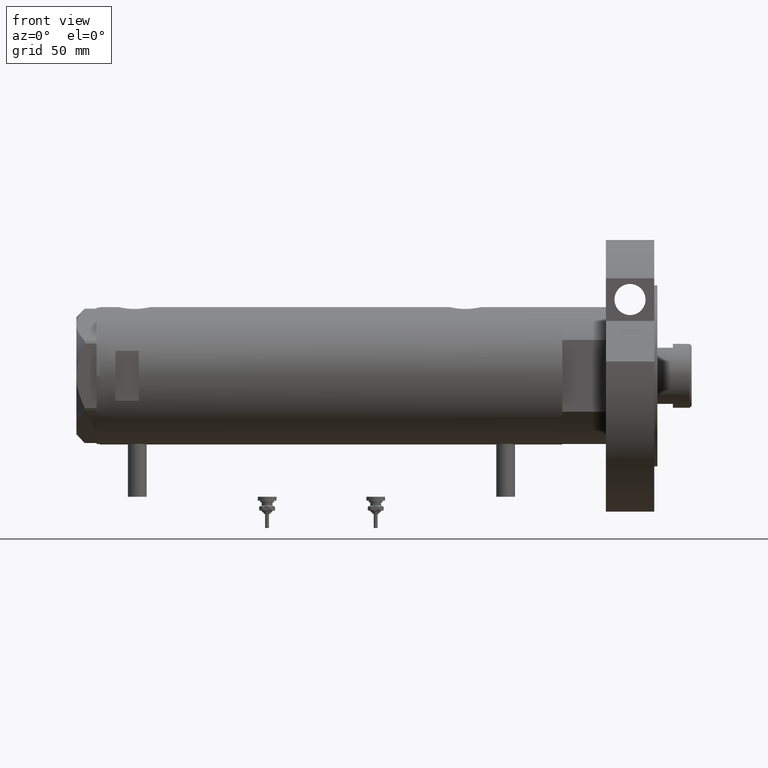
[diagram: clean part render]
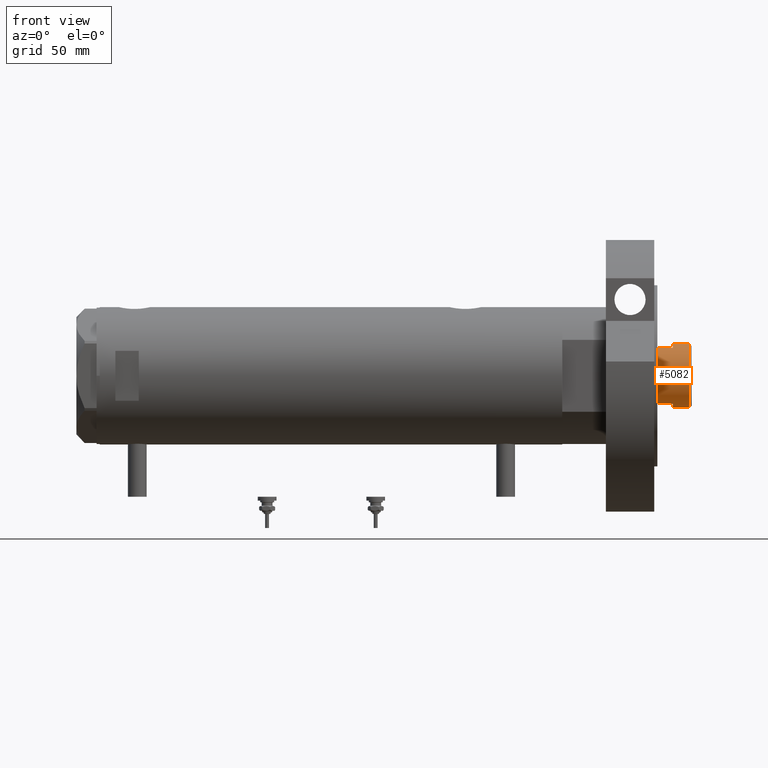
[diagram: same view with one face highlighted and labeled with its STEP entity id]
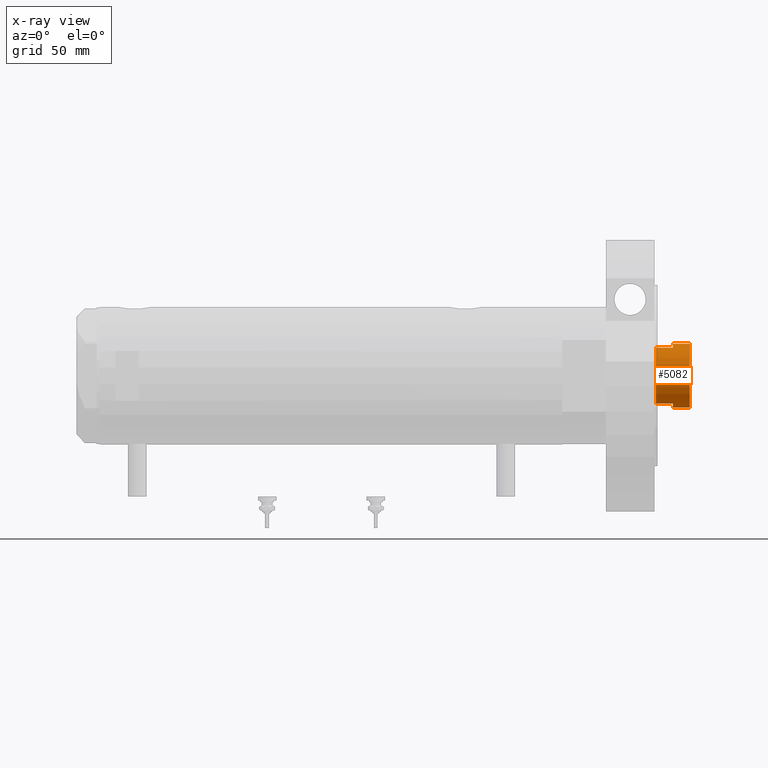
[diagram: x-ray of the same camera — body ghosted, the highlighted face saturated]
A machine part, front view. The second image highlights one B-rep face of the part: STEP entity #5082.
The next image is the same camera in x-ray: the body ghosted, the highlighted face saturated — about 0% of this face is hidden behind the body in this view.
In plain terms, the highlighted cylindrical surface (edge-blend (fillet) strip) has radius 20.5 mm, axis along (-1, -0, 0).
Its self-contained STEP definition (entity closure, byte-faithful):
#30 = CARTESIAN_POINT ( 'NONE',  ( 0.000000000000000000, 0.000000000000000000, 330.2999999999999545 ) ) ;
#38 = DIRECTION ( 'NONE',  ( 1.000000000000000000, 0.000000000000000000, 0.000000000000000000 ) ) ;
#188 = DIRECTION ( 'NONE',  ( 0.000000000000000000, 0.000000000000000000, 1.000000000000000000 ) ) ;
#191 = AXIS2_PLACEMENT_3D ( 'NONE', #5892, #1302, #38 ) ;
#214 = EDGE_CURVE ( 'NONE', #3864, #2049, #6750, .T. ) ;
#323 = CIRCLE ( 'NONE', #2276, 20.50000000000000355 ) ;
#344 = VERTEX_POINT ( 'NONE', #4142 ) ;
#504 = CARTESIAN_POINT ( 'NONE',  ( -20.50000000000000355, 0.000000000000000000, 341.3000000000000114 ) ) ;
#694 = CARTESIAN_POINT ( 'NONE',  ( -17.97852886083842705, -9.849999999999996092, 341.3000000000000114 ) ) ;
#785 = CYLINDRICAL_SURFACE ( 'NONE', #2281, 20.50000000000000355 ) ;
#1007 = EDGE_CURVE ( 'NONE', #6128, #3338, #1262, .T. ) ;
#1262 = CIRCLE ( 'NONE', #3354, 20.50000000000000355 ) ;
#1302 = DIRECTION ( 'NONE',  ( 0.000000000000000000, 0.000000000000000000, 1.000000000000000000 ) ) ;
#1310 = ORIENTED_EDGE ( 'NONE', *, *, #3882, .T. ) ;
#1519 = CARTESIAN_POINT ( 'NONE',  ( 0.000000000000000000, 0.000000000000000000, 351.8999999999999773 ) ) ;
#1701 = DIRECTION ( 'NONE',  ( -0.000000000000000000, -0.000000000000000000, -1.000000000000000000 ) ) ;
#1806 = VECTOR ( 'NONE', #3144, 1000.000000000000000 ) ;
#2049 = VERTEX_POINT ( 'NONE', #4431 ) ;
#2159 = DIRECTION ( 'NONE',  ( -0.000000000000000000, -0.000000000000000000, -1.000000000000000000 ) ) ;
#2183 = ORIENTED_EDGE ( 'NONE', *, *, #2783, .T. ) ;
#2244 = CARTESIAN_POINT ( 'NONE',  ( 20.50000000000000355, 2.510525938252074481E-15, 351.8999999999999773 ) ) ;
#2276 = AXIS2_PLACEMENT_3D ( 'NONE', #30, #3597, #5427 ) ;
#2281 = AXIS2_PLACEMENT_3D ( 'NONE', #4038, #6886, #2307 ) ;
#2307 = DIRECTION ( 'NONE',  ( -1.000000000000000000, 0.000000000000000000, 0.000000000000000000 ) ) ;
#2451 = EDGE_CURVE ( 'NONE', #3338, #5850, #6322, .T. ) ;
#2485 = LINE ( 'NONE', #6615, #1806 ) ;
#2654 = EDGE_CURVE ( 'NONE', #3864, #6688, #7305, .T. ) ;
#2710 = DIRECTION ( 'NONE',  ( 1.000000000000000000, 0.000000000000000000, 0.000000000000000000 ) ) ;
#2783 = EDGE_CURVE ( 'NONE', #5850, #3981, #3254, .T. ) ;
#2809 = CARTESIAN_POINT ( 'NONE',  ( -20.50000000000000000, 0.000000000000000000, 341.3000000000000114 ) ) ;
#3103 = CARTESIAN_POINT ( 'NONE',  ( 0.000000000000000000, 0.000000000000000000, 341.3000000000000114 ) ) ;
#3144 = DIRECTION ( 'NONE',  ( -0.000000000000000000, -0.000000000000000000, -1.000000000000000000 ) ) ;
#3254 = CIRCLE ( 'NONE', #191, 20.50000000000000000 ) ;
#3338 = VERTEX_POINT ( 'NONE', #6139 ) ;
#3354 = AXIS2_PLACEMENT_3D ( 'NONE', #1519, #7348, #2710 ) ;
#3568 = LINE ( 'NONE', #5478, #5316 ) ;
#3597 = DIRECTION ( 'NONE',  ( 0.000000000000000000, 0.000000000000000000, 1.000000000000000000 ) ) ;
#3603 = DIRECTION ( 'NONE',  ( 1.000000000000000000, 0.000000000000000000, 0.000000000000000000 ) ) ;
#3699 = ORIENTED_EDGE ( 'NONE', *, *, #2654, .F. ) ;
#3809 = CARTESIAN_POINT ( 'NONE',  ( 17.97852886083843060, -9.849999999999994316, 341.3000000000000114 ) ) ;
#3864 = VERTEX_POINT ( 'NONE', #5861 ) ;
#3882 = EDGE_CURVE ( 'NONE', #3981, #344, #3568, .T. ) ;
#3981 = VERTEX_POINT ( 'NONE', #694 ) ;
#4023 = ORIENTED_EDGE ( 'NONE', *, *, #1007, .T. ) ;
#4038 = CARTESIAN_POINT ( 'NONE',  ( 0.000000000000000000, 0.000000000000000000, 341.3000000000000114 ) ) ;
#4142 = CARTESIAN_POINT ( 'NONE',  ( -17.97852886083842350, -9.850000000000029843, 330.2999999999999545 ) ) ;
#4431 = CARTESIAN_POINT ( 'NONE',  ( 20.50000000000000000, 2.510525938252074481E-15, 341.3000000000000114 ) ) ;
#4473 = EDGE_CURVE ( 'NONE', #344, #6688, #323, .T. ) ;
#4554 = ORIENTED_EDGE ( 'NONE', *, *, #5768, .F. ) ;
#4825 = ORIENTED_EDGE ( 'NONE', *, *, #214, .T. ) ;
#4872 = ORIENTED_EDGE ( 'NONE', *, *, #4473, .T. ) ;
#5082 = ADVANCED_FACE ( 'NONE', ( #6249 ), #785, .T. ) ;
#5316 = VECTOR ( 'NONE', #6469, 1000.000000000000000 ) ;
#5427 = DIRECTION ( 'NONE',  ( 1.000000000000000000, 0.000000000000000000, 0.000000000000000000 ) ) ;
#5476 = EDGE_LOOP ( 'NONE', ( #4554, #4023, #5952, #2183, #1310, #4872, #3699, #4825 ) ) ;
#5478 = CARTESIAN_POINT ( 'NONE',  ( -17.97852886083842350, -9.850000000000001421, 341.3000000000000114 ) ) ;
#5768 = EDGE_CURVE ( 'NONE', #6128, #2049, #2485, .T. ) ;
#5813 = CARTESIAN_POINT ( 'NONE',  ( 17.97852886083843060, -9.850000000000019185, 330.2999999999999545 ) ) ;
#5850 = VERTEX_POINT ( 'NONE', #2809 ) ;
#5861 = CARTESIAN_POINT ( 'NONE',  ( 17.97852886083843060, -9.849999999999994316, 341.3000000000000114 ) ) ;
#5892 = CARTESIAN_POINT ( 'NONE',  ( 0.000000000000000000, 0.000000000000000000, 341.3000000000000114 ) ) ;
#5952 = ORIENTED_EDGE ( 'NONE', *, *, #2451, .T. ) ;
#6128 = VERTEX_POINT ( 'NONE', #2244 ) ;
#6139 = CARTESIAN_POINT ( 'NONE',  ( -20.50000000000000355, 0.000000000000000000, 351.8999999999999773 ) ) ;
#6142 = AXIS2_PLACEMENT_3D ( 'NONE', #3103, #188, #3603 ) ;
#6249 = FACE_OUTER_BOUND ( 'NONE', #5476, .T. ) ;
#6322 = LINE ( 'NONE', #504, #6786 ) ;
#6469 = DIRECTION ( 'NONE',  ( -0.000000000000000000, -0.000000000000000000, -1.000000000000000000 ) ) ;
#6615 = CARTESIAN_POINT ( 'NONE',  ( 20.50000000000000355, 2.510525938252074481E-15, 341.3000000000000114 ) ) ;
#6688 = VERTEX_POINT ( 'NONE', #5813 ) ;
#6750 = CIRCLE ( 'NONE', #6142, 20.50000000000000000 ) ;
#6786 = VECTOR ( 'NONE', #1701, 1000.000000000000000 ) ;
#6886 = DIRECTION ( 'NONE',  ( -0.000000000000000000, -0.000000000000000000, -1.000000000000000000 ) ) ;
#7305 = LINE ( 'NONE', #3809, #7385 ) ;
#7348 = DIRECTION ( 'NONE',  ( 0.000000000000000000, 0.000000000000000000, -1.000000000000000000 ) ) ;
#7385 = VECTOR ( 'NONE', #2159, 1000.000000000000000 ) ;